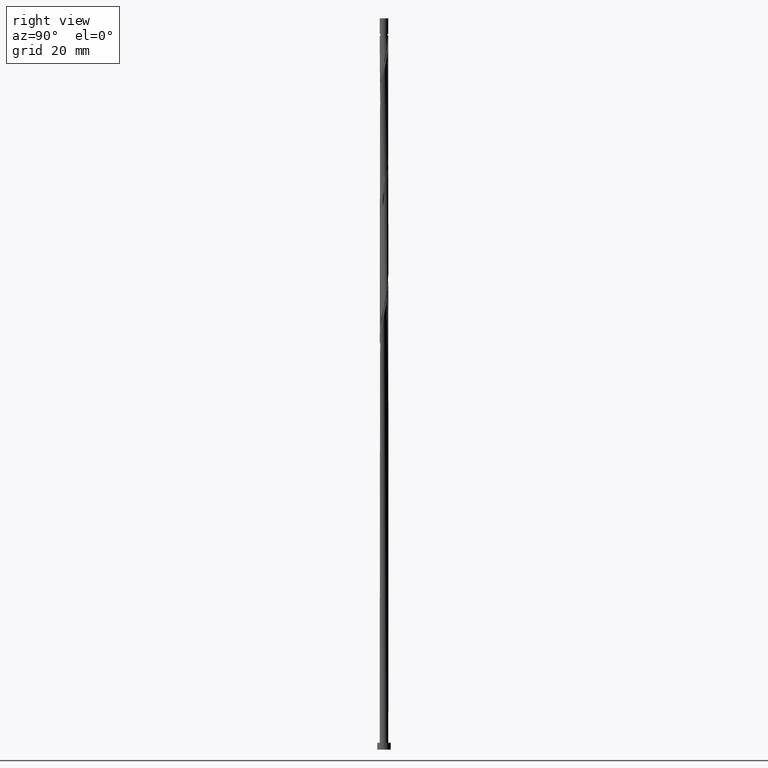
[diagram: clean part render]
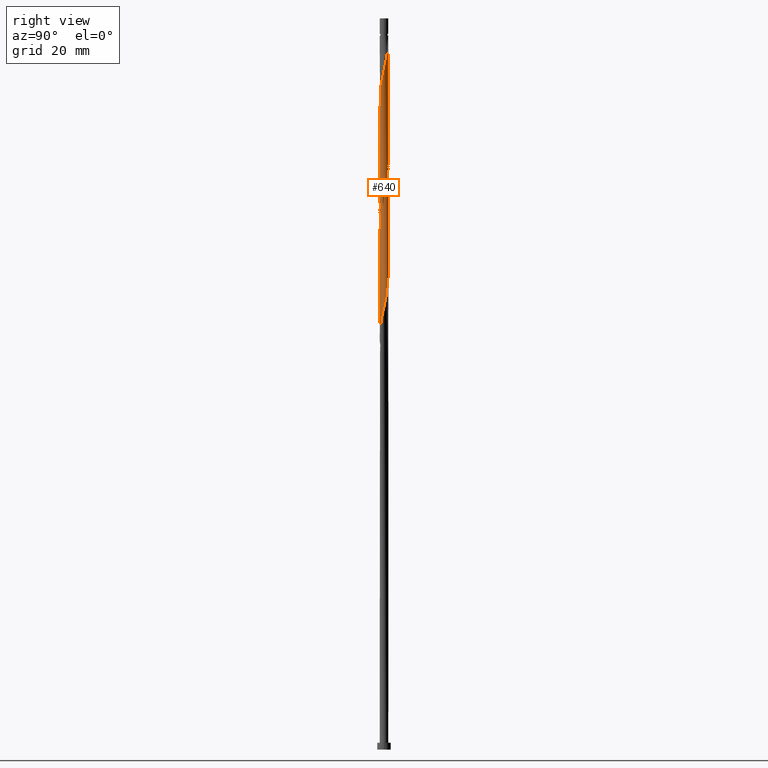
[diagram: same view with one face highlighted and labeled with its STEP entity id]
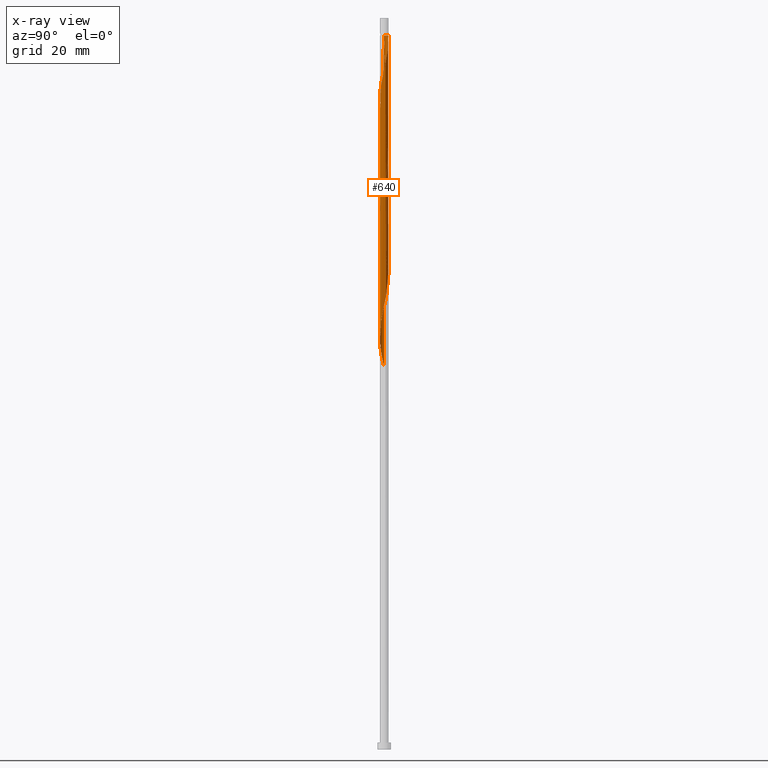
[diagram: x-ray of the same camera — body ghosted, the highlighted face saturated]
A machine part, right view. The second image highlights one B-rep face of the part: STEP entity #640.
The next image is the same camera in x-ray: the body ghosted, the highlighted face saturated — about 0% of this face is hidden behind the body in this view.
In plain terms, the highlighted cylindrical surface (bore or boss wall) has radius 0.95 mm, axis along (-0, -0, -1).
Its self-contained STEP definition (entity closure, byte-faithful):
#1 = CARTESIAN_POINT ( 'NONE',  ( -0.9405736839069129829, 0.1909916324817295397, 109.5574997407528031 ) ) ;
#7 = CARTESIAN_POINT ( 'NONE',  ( 0.2169963293790501957, -0.9349167083608446172, 118.0423482256012733 ) ) ;
#8 = CARTESIAN_POINT ( 'NONE',  ( -0.4716029280196097906, 0.8359110818858597192, 105.9211361043891628 ) ) ;
#16 = DIRECTION ( 'NONE',  ( -0.000000000000000000, -0.000000000000000000, -1.000000000000000000 ) ) ;
#22 = DIRECTION ( 'NONE',  ( -1.000000000000000000, 0.000000000000000000, 0.000000000000000000 ) ) ;
#29 = CARTESIAN_POINT ( 'NONE',  ( -0.9484280428683476982, -0.05462826650112707211, 135.6181058013588654 ) ) ;
#30 = CARTESIAN_POINT ( 'NONE',  ( -0.8486652799209899456, 0.4482453582502393674, 135.0120451952982137 ) ) ;
#35 = ORIENTED_EDGE ( 'NONE', *, *, #111, .F. ) ;
#37 = DIRECTION ( 'NONE',  ( -0.000000000000000000, -0.000000000000000000, -1.000000000000000000 ) ) ;
#39 = EDGE_CURVE ( 'NONE', #514, #897, #1306, .T. ) ;
#43 = CARTESIAN_POINT ( 'NONE',  ( -0.9500000000000013989, 5.608807763810995000E-17, 135.3747119281185576 ) ) ;
#45 = CARTESIAN_POINT ( 'NONE',  ( 0.05519002134093833889, 0.9581809432881893684, 103.4968936801467265 ) ) ;
#54 = CARTESIAN_POINT ( 'NONE',  ( 0.6623735734029941868, 0.6810001830083095564, 127.1332573165103668 ) ) ;
#55 = CARTESIAN_POINT ( 'NONE',  ( 0.1890476130502589391, 0.9310000000000014930, 102.8908330740861317 ) ) ;
#72 = VECTOR ( 'NONE', #1335, 1000.000000000000000 ) ;
#74 = CIRCLE ( 'NONE', #850, 0.9499999999999929612 ) ;
#86 = CARTESIAN_POINT ( 'NONE',  ( 0.6880030621626281873, -0.6691849109111058791, 93.79992398317703817 ) ) ;
#101 = CARTESIAN_POINT ( 'NONE',  ( -0.1890476130502843632, 0.9310000000002590648, 156.2241664074194603 ) ) ;
#111 = EDGE_CURVE ( 'NONE', #1065, #1527, #125, .T. ) ;
#117 = CARTESIAN_POINT ( 'NONE',  ( -0.9254006043083068400, -0.2147876196288410200, 111.3756815589346161 ) ) ;
#118 = VERTEX_POINT ( 'NONE', #1430 ) ;
#124 = CARTESIAN_POINT ( 'NONE',  ( -0.6880030621626279652, 0.6691849109111058791, 107.1332573165103526 ) ) ;
#125 =( BOUNDED_CURVE ( )  B_SPLINE_CURVE ( 2, ( #43, #660, #29, #994, #525, #1008, #792, #1001, #1256, #1341, #628, #501, #753, #1110, #782, #508, #1460, #1135, #387, #516, #275, #876, #762, #1117, #1468, #393, #886, #1357, #1477, #403, #895, #653, #418, #556, #1389, #680, #720 ),
 .UNSPECIFIED., .F., .T. ) 
 B_SPLINE_CURVE_WITH_KNOTS ( ( 3, 2, 2, 2, 2, 2, 2, 2, 2, 2, 2, 2, 2, 2, 2, 2, 2, 2, 3 ),
 ( 0.5545252162417512176, 0.5568181818181818787, 0.5681818181818181213, 0.5795454545454545858, 0.5909090909090908283, 0.6022727272727272929, 0.6136363636363636465, 0.6250000000000000000, 0.6363636363636363535, 0.6477272727272727071, 0.6590909090909091717, 0.6704545454545454142, 0.6818181818181817677, 0.6931818181818180102, 0.7045454545454544748, 0.7159090909090907173, 0.7272727272727271819, 0.7386363636363635354, 0.7499999999999998890 ),
 .UNSPECIFIED. ) 
 CURVE ( )  GEOMETRIC_REPRESENTATION_ITEM ( )  RATIONAL_B_SPLINE_CURVE ( ( 0.9061101570135861039, 0.9072237824201683232, 0.9090909090909460311, 0.8998376744372480474, 0.9090909090909460311, 0.8998376744372480474, 0.9090909090909460311, 0.8998376744372480474, 0.9090909090909460311, 0.8998376744372480474, 0.9090909090909460311, 0.8998376744372480474, 0.9090909090909460311, 0.8998376744372480474, 0.9090909090909460311, 0.8998376744372480474, 0.9090909090909460311, 0.8998376744372480474, 0.9090909090909460311, 0.8998376744372480474, 0.9090909090909460311, 0.8998376744372480474, 0.9090909090909460311, 0.8998376744372480474, 0.9090909090909460311, 0.8998376744372480474, 0.9090909090909460311, 0.8998376744372480474, 0.9090909090909460311, 0.8998376744372480474, 0.9090909090909460311, 0.8998376744372480474, 0.9090909090909460311, 0.8998376744372480474, 0.9090909090909460311, 0.8998376744372481584, 0.9090909090909459200 ) ) 
 REPRESENTATION_ITEM ( '' )  );
#131 = CARTESIAN_POINT ( 'NONE',  ( -0.8486652799209899456, 0.4482453582502393674, 108.3453785286315991 ) ) ;
#133 = ORIENTED_EDGE ( 'NONE', *, *, #1359, .T. ) ;
#138 = CARTESIAN_POINT ( 'NONE',  ( -0.8946194819139515753, 0.3196184953659843564, 135.6181058013588938 ) ) ;
#153 = EDGE_CURVE ( 'NONE', #118, #1303, #384, .T. ) ;
#158 = CARTESIAN_POINT ( 'NONE',  ( 0.9254006043083068400, 0.2147876196288407147, 98.04234822560127327 ) ) ;
#185 = CARTESIAN_POINT ( 'NONE',  ( 0.5644605288797949205, 0.7762351253795460870, 127.7393179225710043 ) ) ;
#191 = CARTESIAN_POINT ( 'NONE',  ( 0.9254006043083068400, 0.2147876196288407147, 124.7090148922679447 ) ) ;
#209 = CARTESIAN_POINT ( 'NONE',  ( -0.8945188067868306003, -0.3478401397782067139, 85.31507549832856796 ) ) ;
#214 = CARTESIAN_POINT ( 'NONE',  ( 0.9499999999999999556, 1.163414459189985682E-16, 156.2241664074194603 ) ) ;
#215 = CARTESIAN_POINT ( 'NONE',  ( -0.5644605288797949205, -0.7762351253795460870, 87.73931792257097584 ) ) ;
#219 = VECTOR ( 'NONE', #16, 1000.000000000000000 ) ;
#222 = FACE_OUTER_BOUND ( 'NONE', #238, .T. ) ;
#233 = CARTESIAN_POINT ( 'NONE',  ( -0.4436828668196869940, -0.8400270910456797413, 115.0120451952982563 ) ) ;
#238 = EDGE_LOOP ( 'NONE', ( #298, #290, #35, #133, #378, #589, #1360, #838 ) ) ;
#240 = CARTESIAN_POINT ( 'NONE',  ( -0.8946194819139515753, 0.3196184953659843564, 108.9514391346921798 ) ) ;
#254 = CARTESIAN_POINT ( 'NONE',  ( -0.8274027123565120823, -0.4668026902076397033, 112.5878027710558200 ) ) ;
#273 = CARTESIAN_POINT ( 'NONE',  ( 0.8945188067868307114, 0.3478401397782063253, 98.64840883166186813 ) ) ;
#275 = CARTESIAN_POINT ( 'NONE',  ( 0.8274027123565120823, -0.4668026902076398699, 146.5271967104497435 ) ) ;
#276 = CARTESIAN_POINT ( 'NONE',  ( 0.9500000000000015099, 0.1088024810158669531, 124.2262475063583480 ) ) ;
#290 = ORIENTED_EDGE ( 'NONE', *, *, #942, .T. ) ;
#298 = ORIENTED_EDGE ( 'NONE', *, *, #39, .F. ) ;
#310 = DIRECTION ( 'NONE',  ( -0.000000000000000000, -0.000000000000000000, -1.000000000000000000 ) ) ;
#355 = CARTESIAN_POINT ( 'NONE',  ( 0.9500000000000015099, -0.02733675019763122729, 123.6181895486687807 ) ) ;
#356 = CARTESIAN_POINT ( 'NONE',  ( -0.7602866179261941193, -0.5857652406370725817, 113.1938633771164149 ) ) ;
#366 = CARTESIAN_POINT ( 'NONE',  ( -0.3229052047595791786, -0.9038190567118133956, 115.6181058013588370 ) ) ;
#378 = ORIENTED_EDGE ( 'NONE', *, *, #153, .F. ) ;
#380 = CARTESIAN_POINT ( 'NONE',  ( 0.05519002134093833889, 0.9581809432881893684, 130.1635603468133979 ) ) ;
#384 =( BOUNDED_CURVE ( )  B_SPLINE_CURVE ( 2, ( #607, #355, #1206, #486, #1061, #469, #738, #1536, #971, #460, #1302, #7, #1195, #1080, #1436, #366, #233, #710, #949, #356, #254, #711, #117, #1062, #1310, #1, #240, #131, #848, #124, #1087, #8, #964, #765, #636, #45, #55, #775, #528, #1479, #518, #1339, #700, #273, #158, #633, #1115, #1239, #1125, #923, #1165, #86, #559, #1040, #1325, #1213, #837, #519, #434, #567, #1233, #215, #921, #398, #1010, #209, #413, #1003, #530 ),
 .UNSPECIFIED., .F., .T. ) 
 B_SPLINE_CURVE_WITH_KNOTS ( ( 3, 2, 2, 2, 2, 2, 2, 2, 2, 2, 2, 2, 2, 2, 2, 2, 2, 2, 2, 2, 2, 2, 2, 2, 2, 2, 2, 2, 2, 2, 2, 2, 2, 2, 3 ),
 ( 0.5545252162417512176, 0.5568181818181817677, 0.5681818181818182323, 0.5795454545454545858, 0.5909090909090909394, 0.6022727272727272929, 0.6136363636363636465, 0.6250000000000000000, 0.6363636363636363535, 0.6477272727272727071, 0.6590909090909090606, 0.6704545454545454142, 0.6818181818181817677, 0.6931818181818182323, 0.7045454545454545858, 0.7159090909090909394, 0.7272727272727272929, 0.7386363636363636465, 0.7500000000000000000, 0.7613636363636363535, 0.7727272727272727071, 0.7840909090909090606, 0.7954545454545454142, 0.8068181818181817677, 0.8181818181818182323, 0.8295454545454545858, 0.8409090909090909394, 0.8522727272727272929, 0.8636363636363636465, 0.8750000000000000000, 0.8863636363636363535, 0.8977272727272727071, 0.9090909090909091717, 0.9204545454545454142, 0.9295252162417511066 ),
 .UNSPECIFIED. ) 
 CURVE ( )  GEOMETRIC_REPRESENTATION_ITEM ( )  RATIONAL_B_SPLINE_CURVE ( ( 0.9061101570135856598, 0.9072237824201678791, 0.9090909090909454759, 0.8998376744372476033, 0.9090909090909454759, 0.8998376744372476033, 0.9090909090909454759, 0.8998376744372476033, 0.9090909090909454759, 0.8998376744372476033, 0.9090909090909454759, 0.8998376744372476033, 0.9090909090909454759, 0.8998376744372476033, 0.9090909090909454759, 0.8998376744372476033, 0.9090909090909454759, 0.8998376744372476033, 0.9090909090909454759, 0.8998376744372476033, 0.9090909090909454759, 0.8998376744372476033, 0.9090909090909454759, 0.8998376744372476033, 0.9090909090909454759, 0.8998376744372476033, 0.9090909090909454759, 0.8998376744372476033, 0.9090909090909454759, 0.8998376744372476033, 0.9090909090909454759, 0.8998376744372476033, 0.9090909090909454759, 0.8998376744372476033, 0.9090909090909454759, 0.8998376744372476033, 0.9090909090909454759, 0.8998376744372476033, 0.9090909090909454759, 0.8998376744372476033, 0.9090909090909454759, 0.8998376744372476033, 0.9090909090909454759, 0.8998376744372476033, 0.9090909090909454759, 0.8998376744372476033, 0.9090909090909454759, 0.8998376744372476033, 0.9090909090909454759, 0.8998376744372476033, 0.9090909090909454759, 0.8998376744372476033, 0.9090909090909454759, 0.8998376744372476033, 0.9090909090909454759, 0.8998376744372476033, 0.9090909090909454759, 0.8998376744372476033, 0.9090909090909454759, 0.8998376744372476033, 0.9090909090909454759, 0.8998376744372476033, 0.9090909090909454759, 0.8998376744372476033, 0.9090909090909454759, 0.8998376744372476033, 0.9090909090909454759, 0.9017048011080253112, 0.9061101570135855487 ) ) 
 REPRESENTATION_ITEM ( '' )  );
#387 = CARTESIAN_POINT ( 'NONE',  ( 0.6623735734029941868, -0.6810001830083094454, 145.3150754983285253 ) ) ;
#393 = CARTESIAN_POINT ( 'NONE',  ( 0.9405736839069130939, 0.1909916324817293176, 149.5574997407528599 ) ) ;
#398 = CARTESIAN_POINT ( 'NONE',  ( -0.7602866179261941193, -0.5857652406370725817, 86.52719671044974348 ) ) ;
#403 = CARTESIAN_POINT ( 'NONE',  ( 0.6880030621626284093, 0.6691849109111057681, 151.9817421649952109 ) ) ;
#404 = CARTESIAN_POINT ( 'NONE',  ( 0.3229052047595792341, 0.9038190567118131735, 128.9514391346921514 ) ) ;
#413 = CARTESIAN_POINT ( 'NONE',  ( -0.9254006043083068400, -0.2147876196288410200, 84.70901489226793046 ) ) ;
#418 = CARTESIAN_POINT ( 'NONE',  ( 0.3442996286993296740, 0.8854138951233522237, 153.7999239831770808 ) ) ;
#434 = CARTESIAN_POINT ( 'NONE',  ( -0.1890476130502588004, -0.9310000000000014930, 89.55749974075278885 ) ) ;
#441 = LINE ( 'NONE', #707, #1450 ) ;
#456 = DIRECTION ( 'NONE',  ( -1.000000000000000000, 0.000000000000000000, 0.000000000000000000 ) ) ;
#460 = CARTESIAN_POINT ( 'NONE',  ( 0.4716029280196095685, -0.8359110818858597192, 119.2544694377225056 ) ) ;
#469 = CARTESIAN_POINT ( 'NONE',  ( 0.8486652799209899456, -0.4482453582502392564, 121.6787118619648851 ) ) ;
#486 = CARTESIAN_POINT ( 'NONE',  ( 0.9405736839069129829, -0.1909916324817297062, 122.8908330740861317 ) ) ;
#501 = CARTESIAN_POINT ( 'NONE',  ( -0.2169963293790499737, -0.9349167083608447282, 141.0726512559043044 ) ) ;
#502 = CARTESIAN_POINT ( 'NONE',  ( -0.3442996286993297295, 0.8854138951233522237, 131.9817421649952394 ) ) ;
#508 = CARTESIAN_POINT ( 'NONE',  ( 0.3229052047595788455, -0.9038190567118136176, 143.4968936801467692 ) ) ;
#513 = AXIS2_PLACEMENT_3D ( 'NONE', #1541, #310, #456 ) ;
#514 = VERTEX_POINT ( 'NONE', #1050 ) ;
#516 = CARTESIAN_POINT ( 'NONE',  ( 0.7602866179261938973, -0.5857652406370729148, 145.9211361043891770 ) ) ;
#518 = CARTESIAN_POINT ( 'NONE',  ( 0.6623735734029941868, 0.6810001830083095564, 100.4665906498436811 ) ) ;
#519 = CARTESIAN_POINT ( 'NONE',  ( -0.05519002134093860951, -0.9581809432881893684, 90.16356034681338372 ) ) ;
#525 = CARTESIAN_POINT ( 'NONE',  ( -0.8946194819139514642, -0.3196184953659841899, 136.8302270134800835 ) ) ;
#527 = CARTESIAN_POINT ( 'NONE',  ( 0.8945188067868307114, 0.3478401397782063253, 125.3150754983285111 ) ) ;
#528 = CARTESIAN_POINT ( 'NONE',  ( 0.4436828668196871051, 0.8400270910456797413, 101.6787118619649419 ) ) ;
#530 = CARTESIAN_POINT ( 'NONE',  ( -0.9500000000000013989, -1.275068964973033794E-15, 83.74028755338702013 ) ) ;
#556 = CARTESIAN_POINT ( 'NONE',  ( 0.2169963293790501679, 0.9349167083608447282, 154.4059845892376188 ) ) ;
#559 = CARTESIAN_POINT ( 'NONE',  ( 0.5798029950911186559, -0.7525479963984831322, 93.19386337711644330 ) ) ;
#567 = CARTESIAN_POINT ( 'NONE',  ( -0.3229052047595791786, -0.9038190567118133956, 88.95143913469219399 ) ) ;
#589 = ORIENTED_EDGE ( 'NONE', *, *, #877, .F. ) ;
#607 = CARTESIAN_POINT ( 'NONE',  ( 0.9500000000000013989, 1.080630295827586004E-15, 123.7402875533870059 ) ) ;
#614 = CARTESIAN_POINT ( 'NONE',  ( -0.7683341710418088999, 0.5587151345806725677, 134.4059845892376472 ) ) ;
#628 = CARTESIAN_POINT ( 'NONE',  ( -0.3442996286993299515, -0.8854138951233521126, 140.4665906498436811 ) ) ;
#633 = CARTESIAN_POINT ( 'NONE',  ( 0.9562824018297826356, 0.08173509947947511789, 97.43628761954069262 ) ) ;
#636 = CARTESIAN_POINT ( 'NONE',  ( -0.08090315401905580350, 0.9465488258245169373, 104.1029542862073356 ) ) ;
#640 = ADVANCED_FACE ( 'NONE', ( #222 ), #1532, .T. ) ;
#653 = CARTESIAN_POINT ( 'NONE',  ( 0.4716029280196096241, 0.8359110818858600522, 153.1938633771164007 ) ) ;
#660 = CARTESIAN_POINT ( 'NONE',  ( -0.9500000000000016209, -0.02733675019762989156, 135.4968099328368112 ) ) ;
#661 = CARTESIAN_POINT ( 'NONE',  ( 0.9500000000000013989, 1.080630295827586004E-15, 123.7402875533870059 ) ) ;
#675 = DIRECTION ( 'NONE',  ( -0.000000000000000000, -0.000000000000000000, -1.000000000000000000 ) ) ;
#680 = CARTESIAN_POINT ( 'NONE',  ( -0.05519002134093683315, 0.9581809432881894795, 155.6181058013588654 ) ) ;
#700 = CARTESIAN_POINT ( 'NONE',  ( 0.8274027123565120823, 0.4668026902076398699, 99.25446943772247721 ) ) ;
#702 = VERTEX_POINT ( 'NONE', #214 ) ;
#707 = CARTESIAN_POINT ( 'NONE',  ( -0.9499999999999999556, 0.000000000000000000, 160.0000000000000000 ) ) ;
#710 = CARTESIAN_POINT ( 'NONE',  ( -0.5644605288797949205, -0.7762351253795460870, 114.4059845892376472 ) ) ;
#711 = CARTESIAN_POINT ( 'NONE',  ( -0.8945188067868306003, -0.3478401397782067139, 111.9817421649952394 ) ) ;
#714 = CARTESIAN_POINT ( 'NONE',  ( -0.9499999999999999556, 0.000000000000000000, 160.0000000000000000 ) ) ;
#720 = CARTESIAN_POINT ( 'NONE',  ( -0.1890476130502843632, 0.9310000000002590648, 156.2241664074194603 ) ) ;
#738 = CARTESIAN_POINT ( 'NONE',  ( 0.7683341710418088999, -0.5587151345806725677, 121.0726512559043044 ) ) ;
#753 = CARTESIAN_POINT ( 'NONE',  ( -0.08090315401905580350, -0.9465488258245169373, 141.6787118619648709 ) ) ;
#754 = LINE ( 'NONE', #963, #219 ) ;
#762 = CARTESIAN_POINT ( 'NONE',  ( 0.9254006043083067290, -0.2147876196288410755, 147.7393179225709048 ) ) ;
#765 = CARTESIAN_POINT ( 'NONE',  ( -0.2169963293790500292, 0.9349167083608446172, 104.7090148922679589 ) ) ;
#775 = CARTESIAN_POINT ( 'NONE',  ( 0.3229052047595792341, 0.9038190567118131735, 102.2847724680255226 ) ) ;
#782 = CARTESIAN_POINT ( 'NONE',  ( 0.1890476130502585228, -0.9310000000000012710, 142.8908330740860890 ) ) ;
#792 = CARTESIAN_POINT ( 'NONE',  ( -0.7683341710418090109, -0.5587151345806724567, 138.0423482256012448 ) ) ;
#837 = CARTESIAN_POINT ( 'NONE',  ( 0.08090315401905558146, -0.9465488258245169373, 90.76962095287399279 ) ) ;
#838 = ORIENTED_EDGE ( 'NONE', *, *, #1197, .F. ) ;
#847 = CARTESIAN_POINT ( 'NONE',  ( 0.000000000000000000, 0.000000000000000000, 156.2241664074194603 ) ) ;
#848 = CARTESIAN_POINT ( 'NONE',  ( -0.7683341710418088999, 0.5587151345806725677, 107.7393179225709616 ) ) ;
#850 = AXIS2_PLACEMENT_3D ( 'NONE', #847, #37, #22 ) ;
#857 = CARTESIAN_POINT ( 'NONE',  ( -0.9500000000000015099, 5.608807763810998698E-17, 137.0736208867203629 ) ) ;
#864 = CARTESIAN_POINT ( 'NONE',  ( -0.4716029280196097906, 0.8359110818858597192, 132.5878027710558342 ) ) ;
#876 = CARTESIAN_POINT ( 'NONE',  ( 0.8945188067868309334, -0.3478401397782067694, 147.1332573165103668 ) ) ;
#877 = EDGE_CURVE ( 'NONE', #702, #118, #754, .T. ) ;
#886 = CARTESIAN_POINT ( 'NONE',  ( 0.8946194819139514642, 0.3196184953659840233, 150.1635603468134263 ) ) ;
#895 = CARTESIAN_POINT ( 'NONE',  ( 0.5798029950911186559, 0.7525479963984826881, 152.5878027710558342 ) ) ;
#897 = VERTEX_POINT ( 'NONE', #1086 ) ;
#921 = CARTESIAN_POINT ( 'NONE',  ( -0.6623735734029945199, -0.6810001830083094454, 87.13325731651038097 ) ) ;
#923 = CARTESIAN_POINT ( 'NONE',  ( 0.8486652799209899456, -0.4482453582502392564, 95.01204519529824211 ) ) ;
#925 =( BOUNDED_CURVE ( )  B_SPLINE_CURVE ( 2, ( #857, #1101, #1212, #1324, #138, #30, #614, #1094, #980, #864, #502, #987, #1455, #380, #1009, #404, #1501, #185, #54, #1257, #1030, #527, #191, #276, #661 ),
 .UNSPECIFIED., .F., .T. ) 
 B_SPLINE_CURVE_WITH_KNOTS ( ( 3, 2, 2, 2, 2, 2, 2, 2, 2, 2, 2, 2, 3 ),
 ( 0.4295252162417514397, 0.4318181818181818232, 0.4431818181818181768, 0.4545454545454545303, 0.4659090909090908839, 0.4772727272727272929, 0.4886363636363636465, 0.5000000000000000000, 0.5113636363636363535, 0.5227272727272727071, 0.5340909090909090606, 0.5454545454545454142, 0.5545252162417512176 ),
 .UNSPECIFIED. ) 
 CURVE ( )  GEOMETRIC_REPRESENTATION_ITEM ( )  RATIONAL_B_SPLINE_CURVE ( ( 0.9061101570135858818, 0.9072237824201679901, 0.9090909090909454759, 0.8998376744372476033, 0.9090909090909454759, 0.8998376744372476033, 0.9090909090909454759, 0.8998376744372476033, 0.9090909090909454759, 0.8998376744372476033, 0.9090909090909454759, 0.8998376744372476033, 0.9090909090909454759, 0.8998376744372476033, 0.9090909090909454759, 0.8998376744372476033, 0.9090909090909454759, 0.8998376744372476033, 0.9090909090909454759, 0.8998376744372476033, 0.9090909090909454759, 0.8998376744372476033, 0.9090909090909454759, 0.9017048011080252001, 0.9061101570135856598 ) ) 
 REPRESENTATION_ITEM ( '' )  );
#942 = EDGE_CURVE ( 'NONE', #514, #1527, #74, .T. ) ;
#949 = CARTESIAN_POINT ( 'NONE',  ( -0.6623735734029945199, -0.6810001830083094454, 113.7999239831770240 ) ) ;
#963 = CARTESIAN_POINT ( 'NONE',  ( 0.9499999999999999556, 1.163414459189985682E-16, 160.0000000000000000 ) ) ;
#964 = CARTESIAN_POINT ( 'NONE',  ( -0.3442996286993297295, 0.8854138951233522237, 105.3150754983285537 ) ) ;
#971 = CARTESIAN_POINT ( 'NONE',  ( 0.5798029950911186559, -0.7525479963984831322, 119.8605300437831289 ) ) ;
#980 = CARTESIAN_POINT ( 'NONE',  ( -0.5798029950911188779, 0.7525479963984831322, 133.1938633771164291 ) ) ;
#987 = CARTESIAN_POINT ( 'NONE',  ( -0.2169963293790500292, 0.9349167083608446172, 131.3756815589346161 ) ) ;
#994 = CARTESIAN_POINT ( 'NONE',  ( -0.9405736839069130939, -0.1909916324817294286, 136.2241664074194603 ) ) ;
#1001 = CARTESIAN_POINT ( 'NONE',  ( -0.6880030621626281873, -0.6691849109111059901, 138.6484088316618966 ) ) ;
#1003 = CARTESIAN_POINT ( 'NONE',  ( -0.9500000000000010658, -0.1088024810158685074, 84.22624750635834801 ) ) ;
#1008 = CARTESIAN_POINT ( 'NONE',  ( -0.8486652799209901676, -0.4482453582502393119, 137.4362876195406500 ) ) ;
#1009 = CARTESIAN_POINT ( 'NONE',  ( 0.1890476130502589391, 0.9310000000000014930, 129.5574997407527746 ) ) ;
#1010 = CARTESIAN_POINT ( 'NONE',  ( -0.8274027123565120823, -0.4668026902076397033, 85.92113610438914861 ) ) ;
#1030 = CARTESIAN_POINT ( 'NONE',  ( 0.8274027123565120823, 0.4668026902076398699, 125.9211361043891486 ) ) ;
#1040 = CARTESIAN_POINT ( 'NONE',  ( 0.4716029280196095685, -0.8359110818858597192, 92.58780277105583423 ) ) ;
#1050 = CARTESIAN_POINT ( 'NONE',  ( -0.9499999999999929612, 0.000000000000000000, 156.2241664074194603 ) ) ;
#1061 = CARTESIAN_POINT ( 'NONE',  ( 0.8946194819139512422, -0.3196184953659845229, 122.2847724680255226 ) ) ;
#1062 = CARTESIAN_POINT ( 'NONE',  ( -0.9562824018297826356, -0.08173509947947539545, 110.7696209528740070 ) ) ;
#1065 = VERTEX_POINT ( 'NONE', #1194 ) ;
#1080 = CARTESIAN_POINT ( 'NONE',  ( -0.05519002134093860951, -0.9581809432881893684, 116.8302270134800551 ) ) ;
#1086 = CARTESIAN_POINT ( 'NONE',  ( -0.9500000000000015099, 5.608807763810998698E-17, 137.0736208867203629 ) ) ;
#1087 = CARTESIAN_POINT ( 'NONE',  ( -0.5798029950911188779, 0.7525479963984831322, 106.5271967104497577 ) ) ;
#1094 = CARTESIAN_POINT ( 'NONE',  ( -0.6880030621626279652, 0.6691849109111058791, 133.7999239831770240 ) ) ;
#1101 = CARTESIAN_POINT ( 'NONE',  ( -0.9500000000000013989, 0.02733675019763303835, 136.9515228820021662 ) ) ;
#1110 = CARTESIAN_POINT ( 'NONE',  ( 0.05519002134093830420, -0.9581809432881897015, 142.2847724680255510 ) ) ;
#1115 = CARTESIAN_POINT ( 'NONE',  ( 0.9484280428683476982, -0.05462826650112732191, 96.83022701348008354 ) ) ;
#1117 = CARTESIAN_POINT ( 'NONE',  ( 0.9562824018297828577, -0.08173509947947546483, 148.3453785286316133 ) ) ;
#1125 = CARTESIAN_POINT ( 'NONE',  ( 0.8946194819139512422, -0.3196184953659845229, 95.61810580135885118 ) ) ;
#1135 = CARTESIAN_POINT ( 'NONE',  ( 0.5644605288797953646, -0.7762351253795464201, 144.7090148922679305 ) ) ;
#1165 = CARTESIAN_POINT ( 'NONE',  ( 0.7683341710418088999, -0.5587151345806725677, 94.40598458923761882 ) ) ;
#1194 = CARTESIAN_POINT ( 'NONE',  ( -0.9500000000000013989, 5.608807763810995000E-17, 135.3747119281185576 ) ) ;
#1195 = CARTESIAN_POINT ( 'NONE',  ( 0.08090315401905558146, -0.9465488258245169373, 117.4362876195406784 ) ) ;
#1197 = EDGE_CURVE ( 'NONE', #897, #118, #925, .T. ) ;
#1206 = CARTESIAN_POINT ( 'NONE',  ( 0.9484280428683476982, -0.05462826650112732191, 123.4968936801467123 ) ) ;
#1212 = CARTESIAN_POINT ( 'NONE',  ( -0.9484280428683476982, 0.05462826650112719007, 136.8302270134800835 ) ) ;
#1213 = CARTESIAN_POINT ( 'NONE',  ( 0.2169963293790501957, -0.9349167083608446172, 91.37568155893460187 ) ) ;
#1233 = CARTESIAN_POINT ( 'NONE',  ( -0.4436828668196869940, -0.8400270910456797413, 88.34537852863158491 ) ) ;
#1239 = CARTESIAN_POINT ( 'NONE',  ( 0.9405736839069129829, -0.1909916324817297062, 96.22416640741948868 ) ) ;
#1256 = CARTESIAN_POINT ( 'NONE',  ( -0.5798029950911187669, -0.7525479963984826881, 139.2544694377224914 ) ) ;
#1257 = CARTESIAN_POINT ( 'NONE',  ( 0.7602866179261935642, 0.5857652406370728038, 126.5271967104498003 ) ) ;
#1302 = CARTESIAN_POINT ( 'NONE',  ( 0.3442996286993297295, -0.8854138951233522237, 118.6484088316618823 ) ) ;
#1303 = VERTEX_POINT ( 'NONE', #1524 ) ;
#1306 = LINE ( 'NONE', #714, #72 ) ;
#1310 = CARTESIAN_POINT ( 'NONE',  ( -0.9484280428683476982, 0.05462826650112719007, 110.1635603468134263 ) ) ;
#1324 = CARTESIAN_POINT ( 'NONE',  ( -0.9405736839069129829, 0.1909916324817295397, 136.2241664074194603 ) ) ;
#1325 = CARTESIAN_POINT ( 'NONE',  ( 0.3442996286993297295, -0.8854138951233522237, 91.98174216499522515 ) ) ;
#1335 = DIRECTION ( 'NONE',  ( -0.000000000000000000, -0.000000000000000000, -1.000000000000000000 ) ) ;
#1339 = CARTESIAN_POINT ( 'NONE',  ( 0.7602866179261935642, 0.5857652406370728038, 99.86053004378308628 ) ) ;
#1341 = CARTESIAN_POINT ( 'NONE',  ( -0.4716029280196099571, -0.8359110818858597192, 139.8605300437831147 ) ) ;
#1357 = CARTESIAN_POINT ( 'NONE',  ( 0.8486652799209905007, 0.4482453582502389233, 150.7696209528739928 ) ) ;
#1359 = EDGE_CURVE ( 'NONE', #1065, #1303, #441, .T. ) ;
#1360 = ORIENTED_EDGE ( 'NONE', *, *, #877, .T. ) ;
#1389 = CARTESIAN_POINT ( 'NONE',  ( 0.08090315401905594228, 0.9465488258245169373, 155.0120451952981853 ) ) ;
#1430 = CARTESIAN_POINT ( 'NONE',  ( 0.9500000000000013989, 1.080630295827585807E-15, 123.7402875533870059 ) ) ;
#1436 = CARTESIAN_POINT ( 'NONE',  ( -0.1890476130502588004, -0.9310000000000014930, 116.2241664074194460 ) ) ;
#1450 = VECTOR ( 'NONE', #675, 1000.000000000000000 ) ;
#1455 = CARTESIAN_POINT ( 'NONE',  ( -0.08090315401905580350, 0.9465488258245169373, 130.7696209528739928 ) ) ;
#1460 = CARTESIAN_POINT ( 'NONE',  ( 0.4436828668196867720, -0.8400270910456800744, 144.1029542862073356 ) ) ;
#1468 = CARTESIAN_POINT ( 'NONE',  ( 0.9484280428683479203, 0.05462826650112696109, 148.9514391346921798 ) ) ;
#1477 = CARTESIAN_POINT ( 'NONE',  ( 0.7683341710418093440, 0.5587151345806724567, 151.3756815589345592 ) ) ;
#1479 = CARTESIAN_POINT ( 'NONE',  ( 0.5644605288797949205, 0.7762351253795460870, 101.0726512559043186 ) ) ;
#1501 = CARTESIAN_POINT ( 'NONE',  ( 0.4436828668196871051, 0.8400270910456797413, 128.3453785286315849 ) ) ;
#1524 = CARTESIAN_POINT ( 'NONE',  ( -0.9500000000000013989, -1.275068964973033597E-15, 83.74028755338702013 ) ) ;
#1527 = VERTEX_POINT ( 'NONE', #101 ) ;
#1532 = CYLINDRICAL_SURFACE ( 'NONE', #513, 0.9499999999999999556 ) ;
#1536 = CARTESIAN_POINT ( 'NONE',  ( 0.6880030621626281873, -0.6691849109111058791, 120.4665906498437238 ) ) ;
#1541 = CARTESIAN_POINT ( 'NONE',  ( 0.000000000000000000, 0.000000000000000000, 160.0000000000000000 ) ) ;